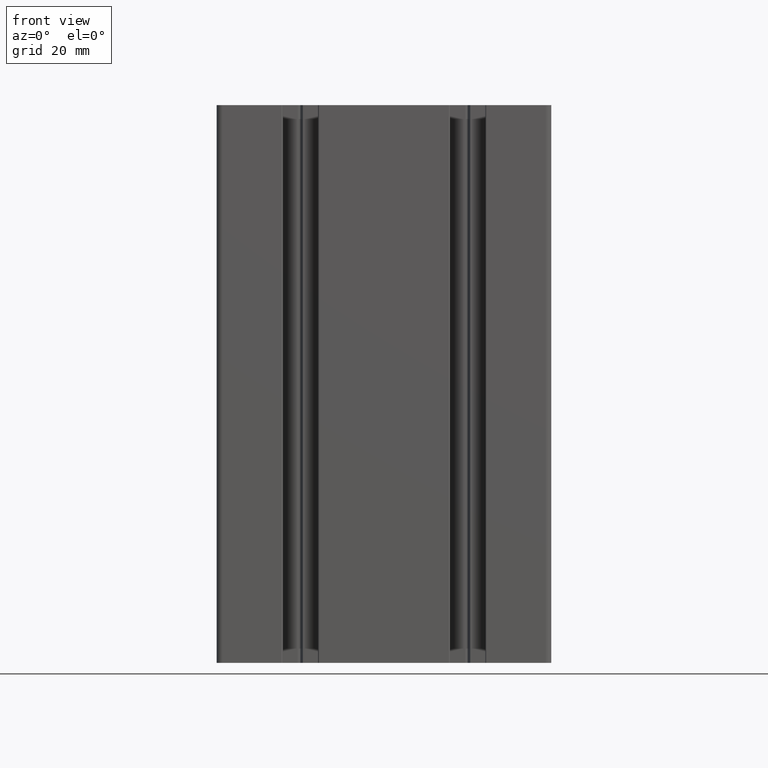
[diagram: clean part render]
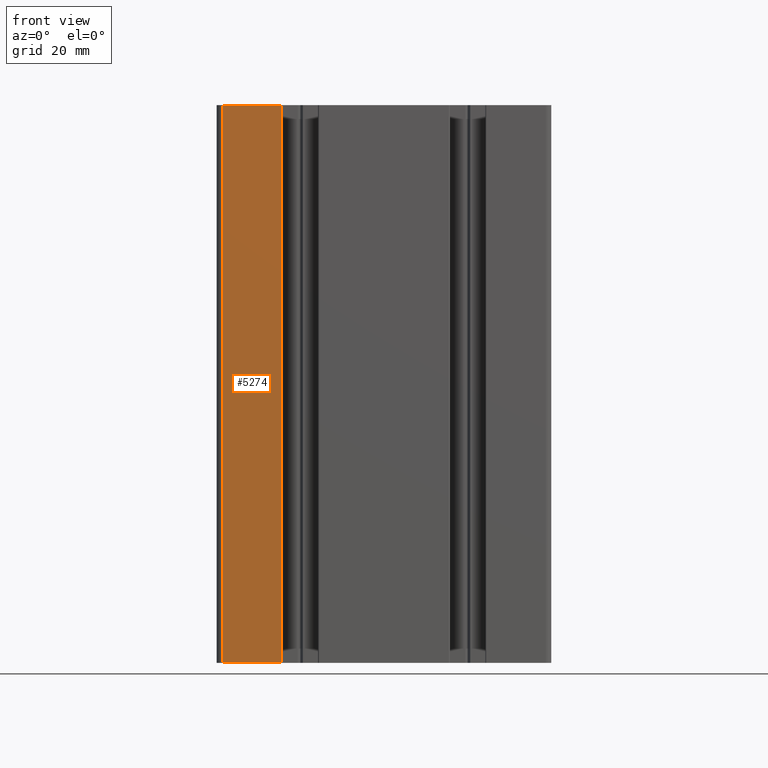
[diagram: same view with one face highlighted and labeled with its STEP entity id]
A machine part, front view. The second image highlights one B-rep face of the part: STEP entity #5274.
In plain terms, the highlighted planar face has unit normal (0, -1, 0).
Its self-contained STEP definition (entity closure, byte-faithful):
#598=FACE_OUTER_BOUND('',#874,.T.);
#874=EDGE_LOOP('',(#4671,#4672,#4673,#4674));
#1007=LINE('',#7663,#1551);
#1161=LINE('',#8241,#1705);
#1418=LINE('',#8907,#1962);
#1419=LINE('',#8909,#1963);
#1551=VECTOR('',#6038,10.);
#1705=VECTOR('',#6474,10.);
#1962=VECTOR('',#7255,10.);
#1963=VECTOR('',#7258,10.);
#2123=VERTEX_POINT('',#7660);
#2124=VERTEX_POINT('',#7662);
#2406=VERTEX_POINT('',#8238);
#2407=VERTEX_POINT('',#8240);
#2657=EDGE_CURVE('',#2123,#2124,#1007,.T.);
#2948=EDGE_CURVE('',#2407,#2406,#1161,.T.);
#3282=EDGE_CURVE('',#2406,#2124,#1418,.T.);
#3283=EDGE_CURVE('',#2407,#2123,#1419,.T.);
#4671=ORIENTED_EDGE('',*,*,#2948,.T.);
#4672=ORIENTED_EDGE('',*,*,#3282,.T.);
#4673=ORIENTED_EDGE('',*,*,#2657,.F.);
#4674=ORIENTED_EDGE('',*,*,#3283,.F.);
#5036=PLANE('',#5811);
#5274=ADVANCED_FACE('',(#598),#5036,.T.);
#5811=AXIS2_PLACEMENT_3D('',#8908,#7256,#7257);
#6038=DIRECTION('',(1.,1.07400839019023E-13,0.));
#6474=DIRECTION('',(1.,1.07400839019023E-13,0.));
#7255=DIRECTION('',(0.,0.,1.));
#7256=DIRECTION('center_axis',(1.07400839019023E-13,-1.,0.));
#7257=DIRECTION('ref_axis',(1.,1.07400839019023E-13,0.));
#7258=DIRECTION('',(0.,0.,1.));
#7660=CARTESIAN_POINT('',(-28.9966546049994,-29.9999990549996,100.));
#7662=CARTESIAN_POINT('',(-18.4113706574988,-29.9999990549985,100.));
#7663=CARTESIAN_POINT('',(-28.9966546049994,-29.9999990549996,100.));
#8238=CARTESIAN_POINT('',(-18.4113706574988,-29.9999990549985,0.));
#8240=CARTESIAN_POINT('',(-28.9966546049994,-29.9999990549996,0.));
#8241=CARTESIAN_POINT('',(-28.9966546049994,-29.9999990549996,0.));
#8907=CARTESIAN_POINT('',(-18.4113706574988,-29.9999990549985,0.));
#8908=CARTESIAN_POINT('Origin',(-28.9966546049994,-29.9999990549996,0.));
#8909=CARTESIAN_POINT('',(-28.9966546049994,-29.9999990549996,0.));